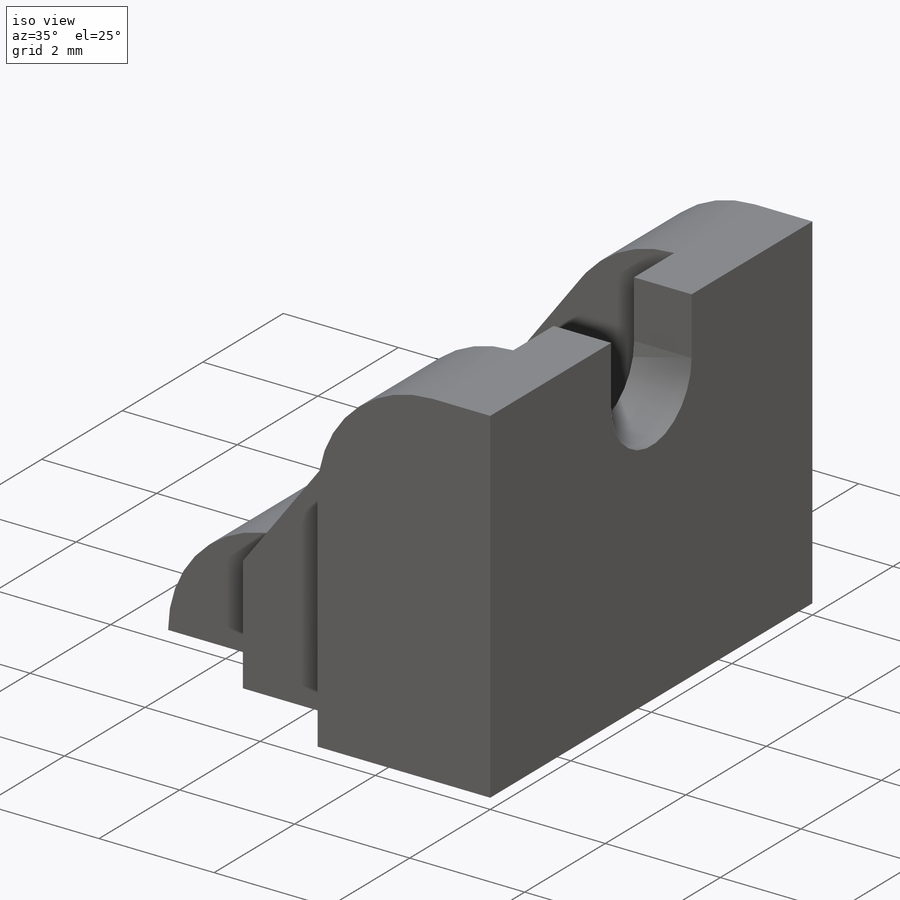
[diagram: iso view]
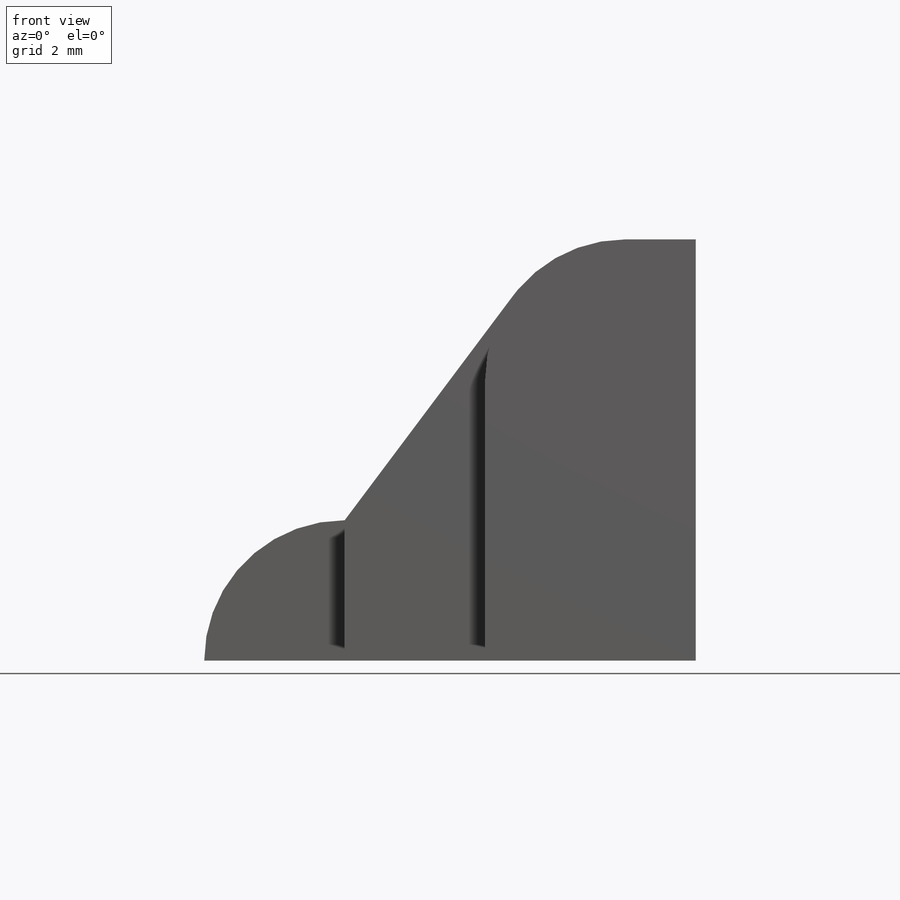
[diagram: front view]
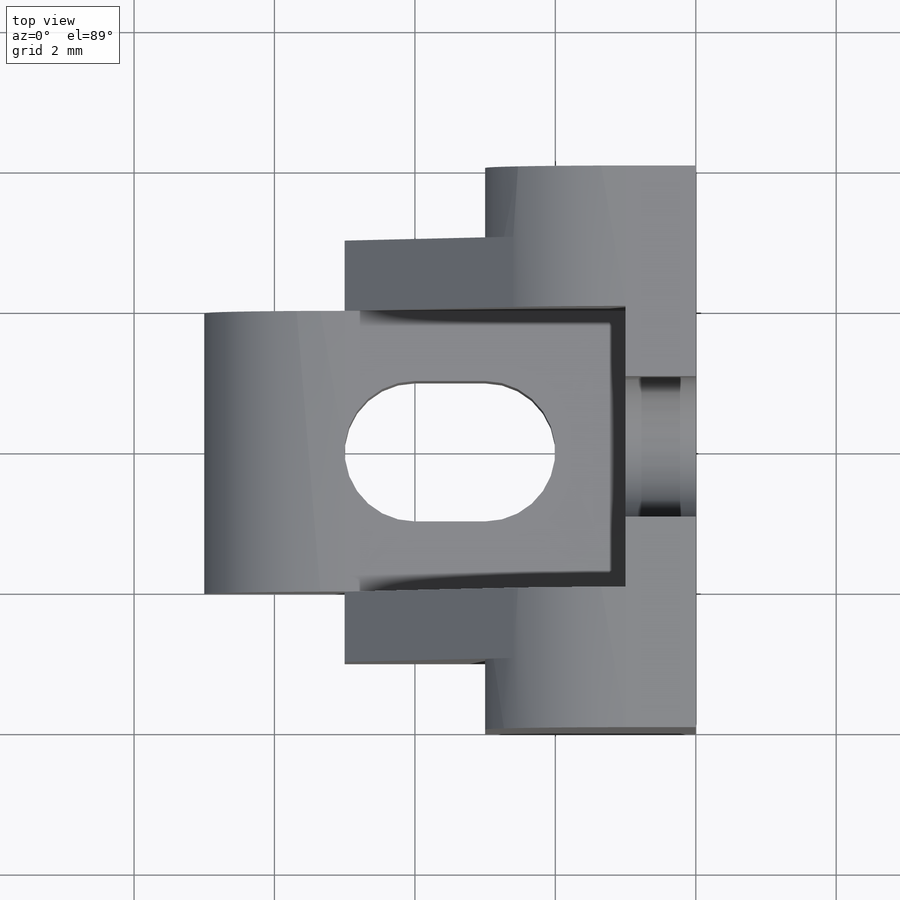
[diagram: top view]
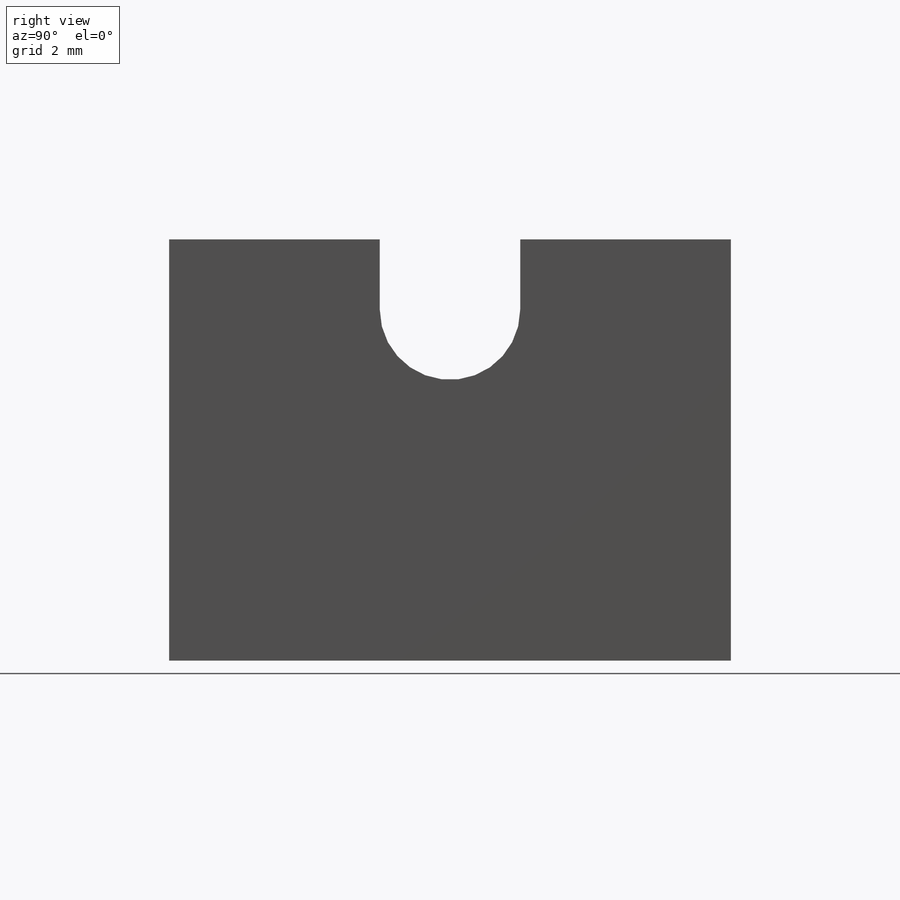
[diagram: right view]
SOLIDWORKS PART (.sldprt)
format: sldprt  version: not decoded by parser v0  size: 250,368 bytes
history: native  units: mm
features: sketch x8, cut_extrude x6, extrude x2, material x1 (+13 scaffold rows collapsed)
feature tree (30):
  scaffold x13  (default folders/planes/origin — collapsed)
  material  "Material <not specified>"
  sketch  "Sketch1"  dims[c1.D4=2.0mm c1.D1=3.0mm c1.D2=2.0mm c1.D3=6.0mm c2.D4=4.0mm c2.D5=2.0mm c2.D6=1.0mm]
  extrude  "Boss-Extrude1"  Depth=8mm
  sketch  "Sketch2"  dims[D1=2.0mm D2=2.0mm]
  cut_extrude  "Cut-Extrude1"  Depth=4mm
  sketch  "Sketch3"  dims[c1.D3=1.0mm c1.D1=1.0mm c1.D2=1.0mm c2.D3=3.0mm]
  cut_extrude  "Cut-Extrude2"  [1 undecoded]
  sketch  "Sketch5"  dims[D2=2.0mm D1=2.0mm]
  extrude  "Boss-Extrude2"  Depth=6mm
  sketch  "Sketch6"
  cut_extrude  "Cut-Extrude4"  Depth=2mm
  sketch  "Sketch7"  dims[D1=1.0mm D2=1.0mm D3=1.0mm D4=1.0mm]
  cut_extrude  "Cut-Extrude5"  [1 undecoded]
  sketch  "Sketch8"  dims[c1.D1=3.0mm c1.D2=5.0mm c2.D1=2.0mm c2.D2=1.0mm]
  cut_extrude  "Cut-Extrude8"  Depth=1mm
  sketch  "Sketch9"  dims[D1=2.0mm D2=4.0mm]
  cut_extrude  "Cut-Extrude9"  Depth=1mm
decode coverage: 13 of 16 modeling features carry decoded parameters
note: 2 parameter values undecoded
note: suppression state not decoded; provenance and decode notes live in map.json
